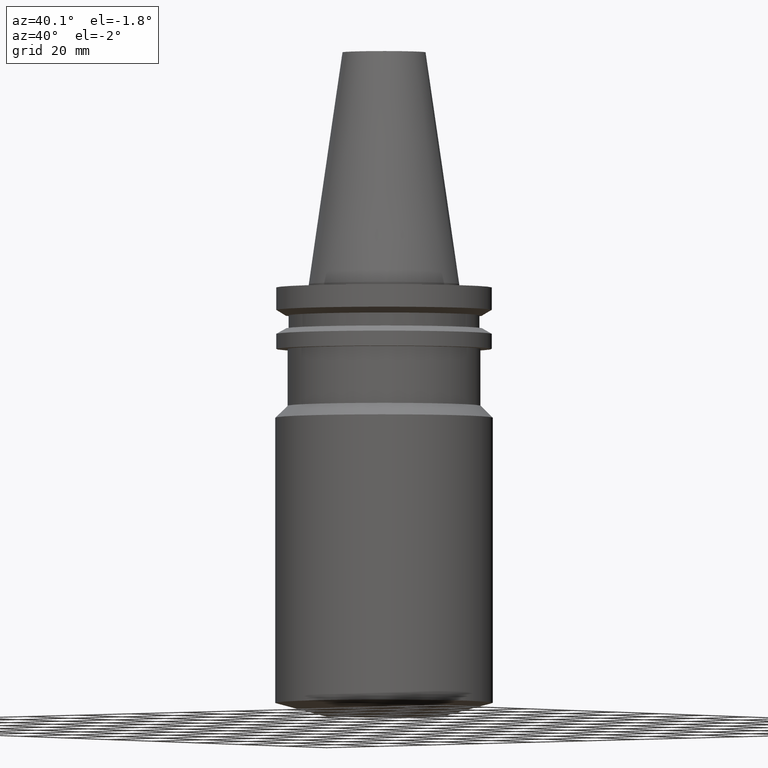
[diagram: clean part render]
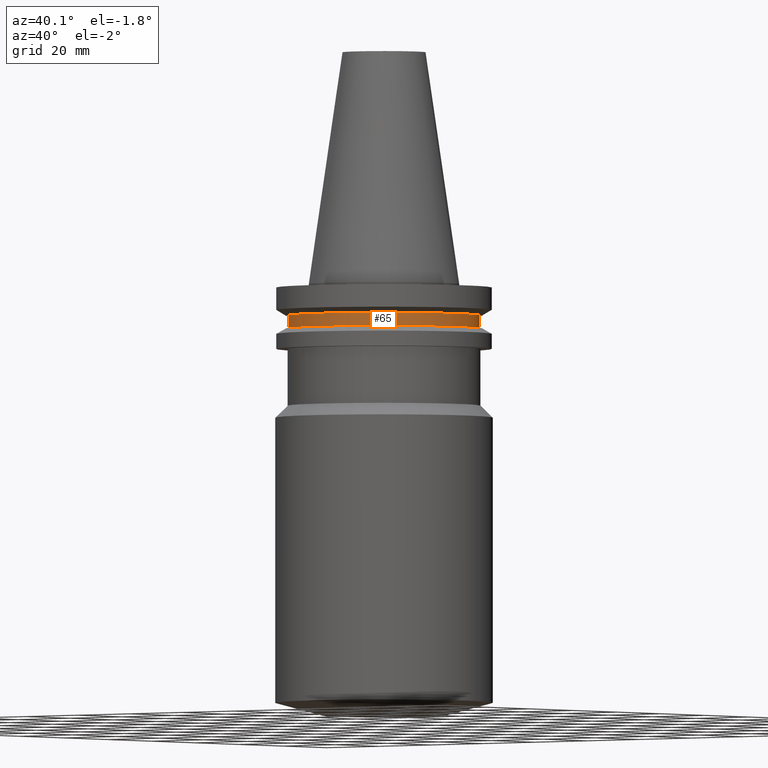
[diagram: same view with one face highlighted and labeled with its STEP entity id]
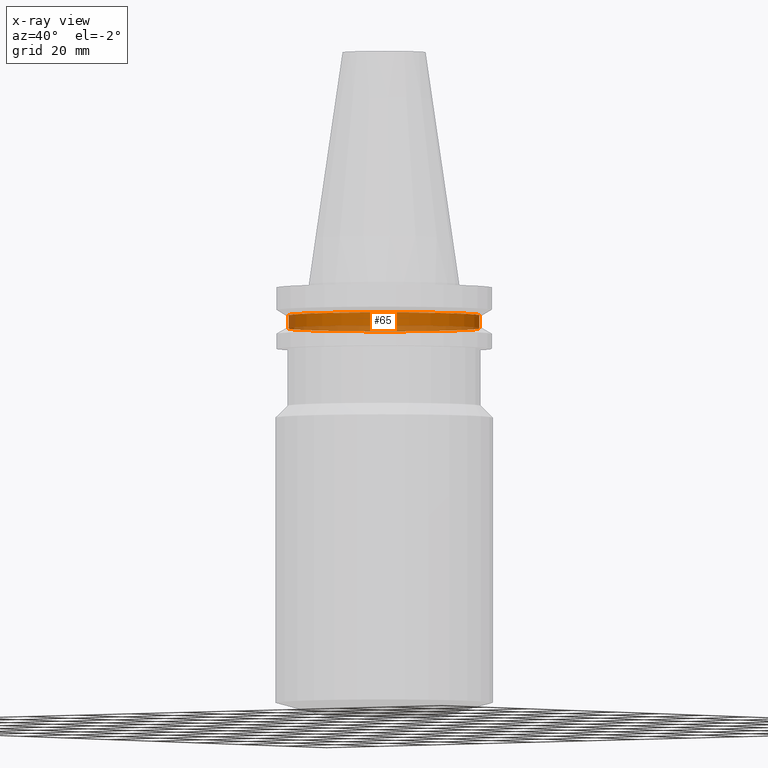
[diagram: x-ray of the same camera — body ghosted, the highlighted face saturated]
A machine part, auxiliary view. The second image highlights one B-rep face of the part: STEP entity #65.
The next image is the same camera in x-ray: the body ghosted, the highlighted face saturated — about 26% of this face is hidden behind the body in this view.
In plain terms, the highlighted cylindrical surface (bore or boss wall) has radius 28.18 mm, axis along (0, 0, -1).
Its self-contained STEP definition (entity closure, byte-faithful):
#65=ADVANCED_FACE('Unnamed[1]',(#171,#172),#173,.T.);
#83=EDGE_CURVE('Unnamed[1]',#200,#200,#201,.T.);
#123=EDGE_CURVE('Unnamed[1]',#263,#263,#264,.T.);
#171=FACE_BOUND('',#314,.T.);
#172=FACE_BOUND('',#315,.T.);
#173=CYLINDRICAL_SURFACE('',#316,28.18);
#200=VERTEX_POINT('',#351);
#201=CIRCLE('',#352,28.18);
#263=VERTEX_POINT('',#430);
#264=CIRCLE('',#431,28.18);
#314=EDGE_LOOP('',(#480));
#315=EDGE_LOOP('',(#481));
#316=AXIS2_PLACEMENT_3D('',#482,#483,#484);
#351=CARTESIAN_POINT('',(5.63337527607782E-016,28.18,-9.2));
#352=AXIS2_PLACEMENT_3D('',#512,#513,#514);
#430=CARTESIAN_POINT('',(7.98469713044073E-016,28.18,-13.04));
#431=AXIS2_PLACEMENT_3D('',#583,#584,#585);
#480=ORIENTED_EDGE('',*,*,#123,.F.);
#481=ORIENTED_EDGE('',*,*,#83,.T.);
#482=CARTESIAN_POINT('',(6.80903620325929E-016,1.36180724065186E-015,-11.12));
#483=DIRECTION('',(6.12323399573677E-017,1.22464679914742E-016,-1.0));
#484=DIRECTION('',(-1.23259516440753E-032,1.0,1.22464679914742E-016));
#512=CARTESIAN_POINT('',(5.63337527607783E-016,1.12667505521557E-015,-9.2));
#513=DIRECTION('',(6.12323399573677E-017,1.22464679914742E-016,-1.0));
#514=DIRECTION('',(-1.23259516440753E-032,1.0,1.22464679914742E-016));
#583=CARTESIAN_POINT('',(7.98469713044074E-016,1.59693942608815E-015,-13.04));
#584=DIRECTION('',(6.12323399573677E-017,1.22464679914742E-016,-1.0));
#585=DIRECTION('',(-1.23259516440753E-032,1.0,1.22464679914742E-016));